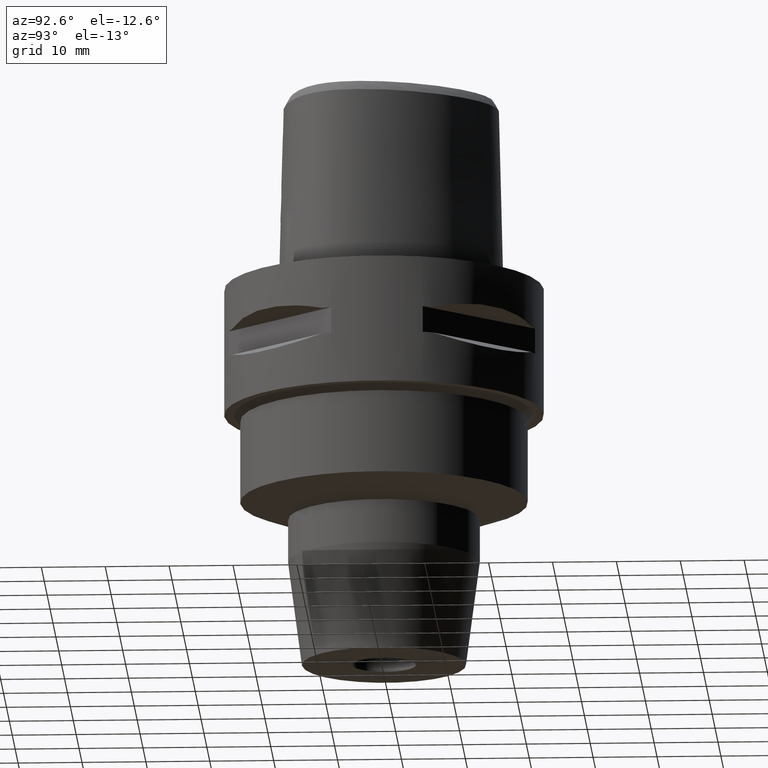
[diagram: clean part render]
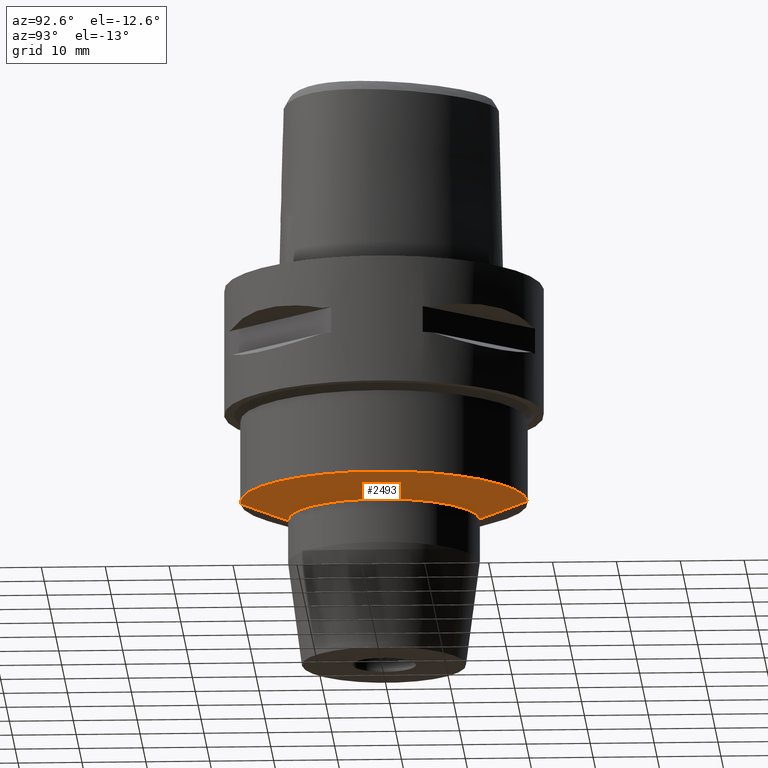
[diagram: same view with one face highlighted and labeled with its STEP entity id]
A machine part, auxiliary view. The second image highlights one B-rep face of the part: STEP entity #2493.
In plain terms, the highlighted conical surface has half-angle 69.682 deg.
Its self-contained STEP definition (entity closure, byte-faithful):
#590=DIRECTION('',(0.E0,9.377798952813E-1,-3.472302809464E-1));
#591=VECTOR('',#590,7.997612273133E0);
#592=CARTESIAN_POINT('',(0.E0,-2.25E1,-3.398998684350E1));
#593=LINE('',#592,#591);
#605=DIRECTION('',(0.E0,-9.377798952813E-1,-3.472302809464E-1));
#606=VECTOR('',#605,7.997612273133E0);
#607=CARTESIAN_POINT('',(0.E0,2.25E1,-3.398998684350E1));
#608=LINE('',#607,#606);
#612=CARTESIAN_POINT('',(0.E0,0.E0,-3.6767E1));
#613=DIRECTION('',(0.E0,0.E0,-1.E0));
#614=DIRECTION('',(0.E0,1.E0,0.E0));
#615=AXIS2_PLACEMENT_3D('',#612,#613,#614);
#620=CARTESIAN_POINT('',(0.E0,0.E0,-3.398998684350E1));
#621=DIRECTION('',(0.E0,0.E0,1.E0));
#622=DIRECTION('',(0.E0,-1.E0,0.E0));
#623=AXIS2_PLACEMENT_3D('',#620,#621,#622);
#1584=CARTESIAN_POINT('',(0.E0,2.25E1,-3.398998684350E1));
#1585=VERTEX_POINT('',#1584);
#1586=CARTESIAN_POINT('',(0.E0,-2.25E1,-3.398998684350E1));
#1587=VERTEX_POINT('',#1586);
#1588=CARTESIAN_POINT('',(0.E0,1.5E1,-3.6767E1));
#1589=VERTEX_POINT('',#1588);
#1590=CARTESIAN_POINT('',(0.E0,-1.5E1,-3.6767E1));
#1591=VERTEX_POINT('',#1590);
#2481=CARTESIAN_POINT('',(0.E0,0.E0,-3.537849342175E1));
#2482=DIRECTION('',(0.E0,0.E0,1.E0));
#2483=DIRECTION('',(0.E0,1.E0,0.E0));
#2484=AXIS2_PLACEMENT_3D('',#2481,#2482,#2483);
#2485=CONICAL_SURFACE('',#2484,1.875E1,6.9682E1);
#2486=ORIENTED_EDGE('',*,*,#2471,.T.);
#2488=ORIENTED_EDGE('',*,*,#2487,.T.);
#2489=ORIENTED_EDGE('',*,*,#2474,.F.);
#2490=ORIENTED_EDGE('',*,*,#2445,.T.);
#2491=EDGE_LOOP('',(#2486,#2488,#2489,#2490));
#2492=FACE_OUTER_BOUND('',#2491,.F.);
#616=CIRCLE('',#615,1.5E1);
#624=CIRCLE('',#623,2.25E1);
#2445=EDGE_CURVE('',#1587,#1585,#624,.T.);
#2471=EDGE_CURVE('',#1585,#1589,#608,.T.);
#2474=EDGE_CURVE('',#1587,#1591,#593,.T.);
#2487=EDGE_CURVE('',#1589,#1591,#616,.T.);
#2493=ADVANCED_FACE('',(#2492),#2485,.T.);